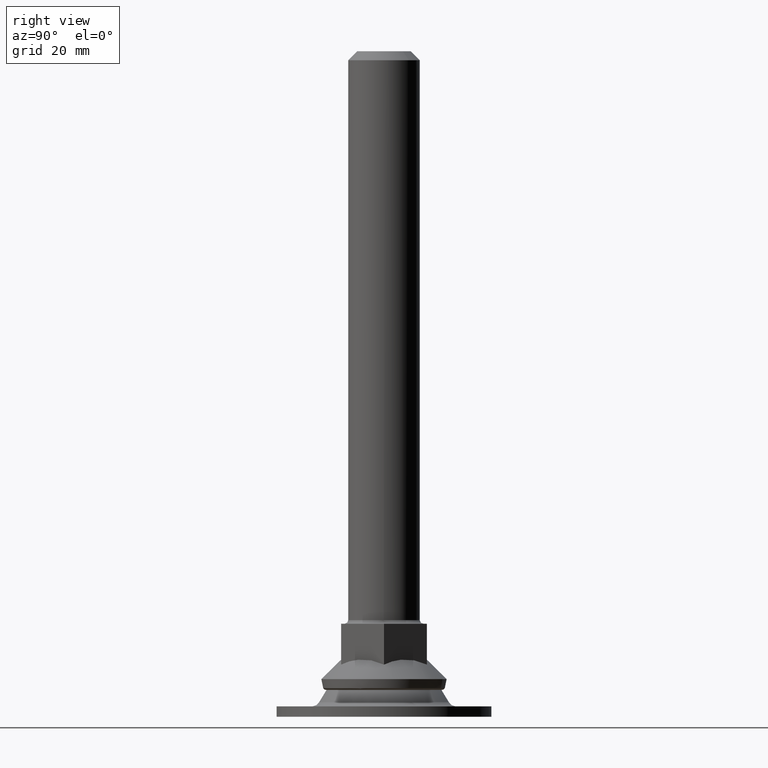
[diagram: clean part render]
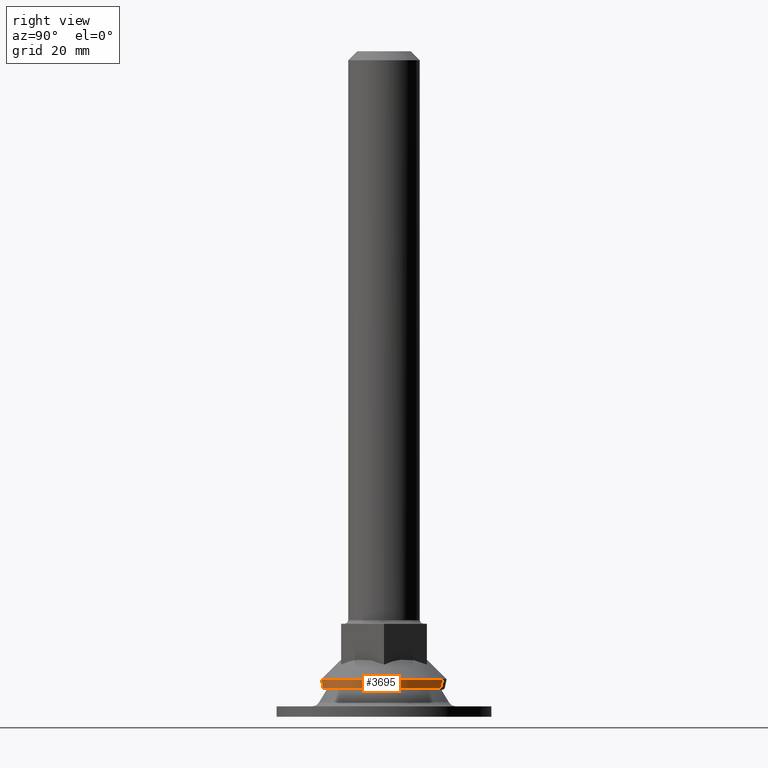
[diagram: same view with one face highlighted and labeled with its STEP entity id]
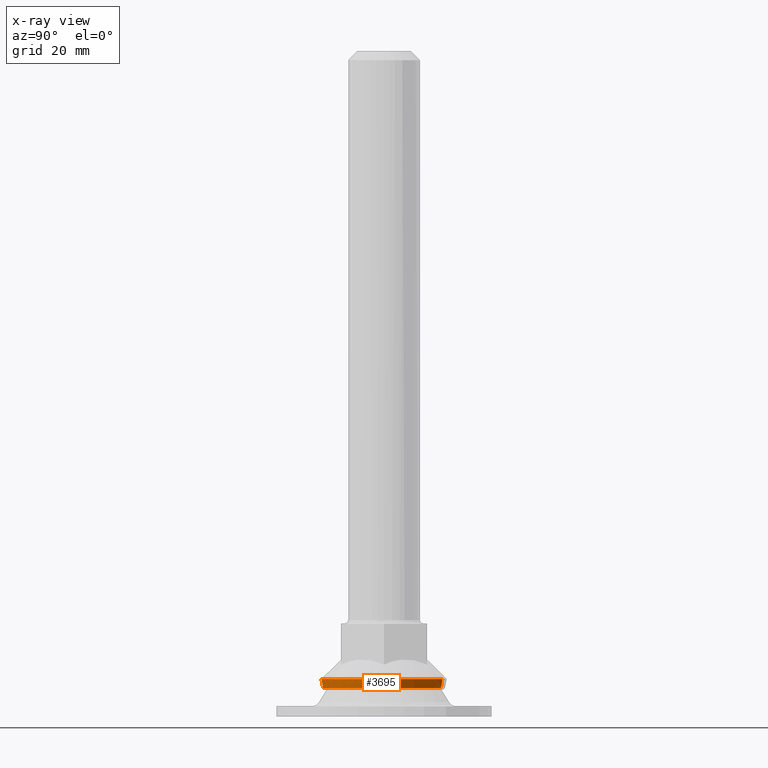
[diagram: x-ray of the same camera — body ghosted, the highlighted face saturated]
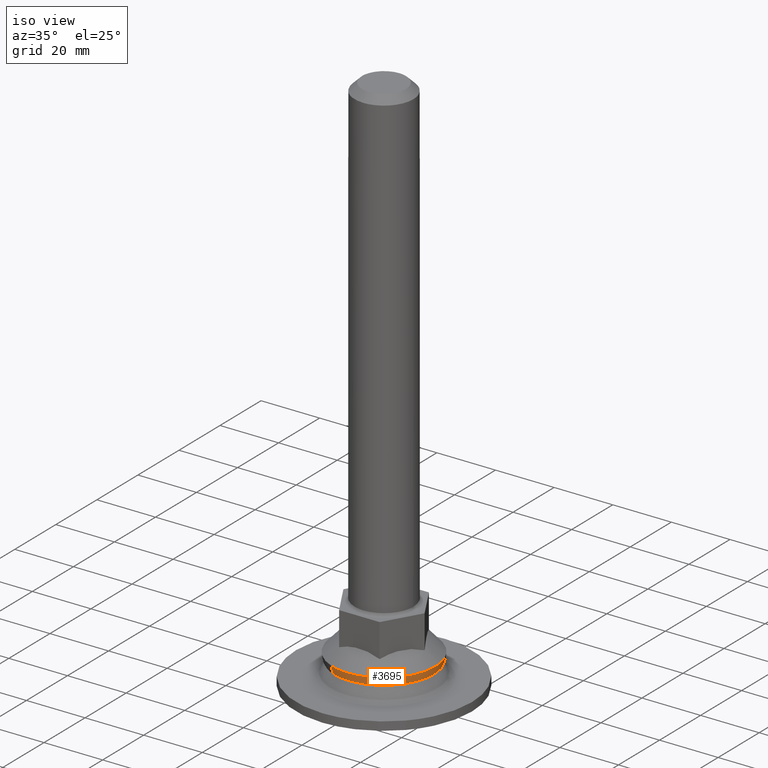
[diagram: same view with one face highlighted and labeled with its STEP entity id]
A machine part, right view. The second image highlights one B-rep face of the part: STEP entity #3695.
The next image is the same camera in x-ray: the body ghosted, the highlighted face saturated — about 0% of this face is hidden behind the body in this view.
A second angle (iso view) of the same face is appended — the face is thin or edge-on in the first view.
In plain terms, the highlighted face is a freeform B-spline surface patch.
Its self-contained STEP definition (entity closure, byte-faithful):
#3468=CARTESIAN_POINT('',(15.726312516149170,-6.456244623863467,7.999999999930881));
#3469=VERTEX_POINT('',#3468);
#3470=CARTESIAN_POINT('',(-6.258117395792366,-15.806200260142059,8.000000000228253));
#3471=VERTEX_POINT('',#3470);
#3472=CARTESIAN_POINT('',(15.726312516149170,-6.456244623863467,7.999999999930881));
#3473=CARTESIAN_POINT('',(15.411945275528870,-7.222024111405900,7.999999999939120));
#3474=CARTESIAN_POINT('',(14.547699398842150,-8.955224634898331,7.999999999959474));
#3475=CARTESIAN_POINT('',(12.825552816272680,-11.302299062939619,7.999999999992882));
#3476=CARTESIAN_POINT('',(10.909712197343181,-13.105471384810199,8.000000000025166));
#3477=CARTESIAN_POINT('',(9.000208056806992,-14.472262690109689,8.000000000054421));
#3478=CARTESIAN_POINT('',(7.178724466458381,-15.466187547113710,8.000000000080449));
#3479=CARTESIAN_POINT('',(4.661525145150057,-16.429952481205980,8.000000000113859));
#3480=CARTESIAN_POINT('',(1.875430037399291,-16.998393214096261,8.000000000147530));
#3481=CARTESIAN_POINT('',(-1.170716699696240,-17.036559030015621,8.000000000180949));
#3482=CARTESIAN_POINT('',(-3.838500639791485,-16.628483182294751,8.000000000207178));
#3483=CARTESIAN_POINT('',(-5.488452843887399,-16.110967106538169,8.000000000221855));
#3484=CARTESIAN_POINT('',(-6.258117395792366,-15.806200260142059,8.000000000228253));
#3485=B_SPLINE_CURVE_WITH_KNOTS('',3,(#3472,#3473,#3474,#3475,#3476,#3477,#3478,#3479,#3480,#3481,#3482,#3483,#3484),.UNSPECIFIED.,.F.,.U.,(4,1,1,1,1,1,1,1,1,1,4),(0.000000071460118,2.483408012162649,5.794703210681519,8.692076653593393,10.347687882398230,12.831157187738160,14.900614009702290,18.418865124234770,21.316244168090829,24.006631849518630,26.490072819547169),.UNSPECIFIED.);
#3486=EDGE_CURVE('',#3469,#3471,#3485,.T.);
#3565=CARTESIAN_POINT('',(17.0,0.0,8.0));
#3566=VERTEX_POINT('',#3565);
#3567=CARTESIAN_POINT('',(17.0,0.0,8.0));
#3568=CARTESIAN_POINT('',(17.000176172652271,-1.172743452213259,7.999999999986646));
#3569=CARTESIAN_POINT('',(16.770589971911711,-3.380147452249711,7.999999999962177));
#3570=CARTESIAN_POINT('',(16.119397758885199,-5.499044814706672,7.999999999940466));
#3571=CARTESIAN_POINT('',(15.726312516149170,-6.456244623863467,7.999999999930881));
#3572=B_SPLINE_CURVE_WITH_KNOTS('',3,(#3567,#3568,#3569,#3570,#3571),.UNSPECIFIED.,.F.,.U.,(4,1,4),(5.739013E-009,3.518209131212337,6.622518204703401),.UNSPECIFIED.);
#3573=EDGE_CURVE('',#3566,#3469,#3572,.T.);
#3579=CARTESIAN_POINT('',(6.258117395792359,15.806200260142070,8.000000000228253));
#3580=VERTEX_POINT('',#3579);
#3596=CARTESIAN_POINT('',(6.258117395792359,15.806200260142070,8.000000000228253));
#3597=CARTESIAN_POINT('',(7.339251267100489,15.378323157670200,8.000000000216769));
#3598=CARTESIAN_POINT('',(9.130278067345383,14.446545691432640,8.000000000195520));
#3599=CARTESIAN_POINT('',(11.312806772669671,12.763805641114470,8.000000000164286));
#3600=CARTESIAN_POINT('',(12.904889765487569,11.135338556870840,8.000000000137465));
#3601=CARTESIAN_POINT('',(14.311464065885289,9.278175130208824,8.000000000109731));
#3602=CARTESIAN_POINT('',(15.601704904183670,6.962515403693350,8.000000000078165));
#3603=CARTESIAN_POINT('',(16.703578281738579,3.805129961779894,8.000000000039572));
#3604=CARTESIAN_POINT('',(17.000322325687989,1.374145170109825,8.000000000013644));
#3605=CARTESIAN_POINT('',(17.0,0.0,8.0));
#3606=B_SPLINE_CURVE_WITH_KNOTS('',3,(#3596,#3597,#3598,#3599,#3600,#3601,#3602,#3603,#3604,#3605),.UNSPECIFIED.,.F.,.U.,(4,1,1,1,1,1,1,4),(0.000000090536375,3.488154733811705,6.025010645012619,8.244779150341183,10.305886822150160,13.001306644113010,16.172392749249671,20.294762095754450),.UNSPECIFIED.);
#3607=EDGE_CURVE('',#3580,#3566,#3606,.T.);
#3612=CARTESIAN_POINT('',(5.986866945175700,16.450019839834329,10.627247101888223));
#3613=CARTESIAN_POINT('',(6.212969554026271,16.360499484128155,10.627247101888218));
#3614=CARTESIAN_POINT('',(22.711651451928972,9.828209212504524,10.627247101888218));
#3615=CARTESIAN_POINT('',(16.269930332216752,-6.441721119712226,10.627247101888223));
#3616=CARTESIAN_POINT('',(9.828209212504524,-22.711651451928972,10.627247101888218));
#3617=CARTESIAN_POINT('',(-6.670472685471764,-16.179361180276210,10.627247101888219));
#3618=CARTESIAN_POINT('',(-6.896575294394225,-16.089840824541575,10.627247101888216));
#3619=CARTESIAN_POINT('',(5.996463749742619,16.476388828317045,9.194675292384705));
#3620=CARTESIAN_POINT('',(6.222928795669060,16.386724973621106,9.194675292384705));
#3621=CARTESIAN_POINT('',(22.748057686170046,9.843963596879345,9.194675292384703));
#3622=CARTESIAN_POINT('',(16.296010641524699,-6.452047044645351,9.194675292384705));
#3623=CARTESIAN_POINT('',(9.843963596879345,-22.748057686170046,9.194675292384703));
#3624=CARTESIAN_POINT('',(-6.681165293695343,-16.205296309399110,9.194675292384703));
#3625=CARTESIAN_POINT('',(-6.907630339693784,-16.115632454674671,9.194675292384705));
#3626=CARTESIAN_POINT('',(5.799099453651707,15.934094066114815,7.883083658873164));
#3627=CARTESIAN_POINT('',(6.018110754130193,15.847381358012161,7.883083658873163));
#3628=CARTESIAN_POINT('',(21.999340678940712,9.519964815743370,7.883083658873161));
#3629=CARTESIAN_POINT('',(15.759652747342047,-6.239687931598676,7.883083658873163));
#3630=CARTESIAN_POINT('',(9.519964815743370,-21.999340678940712,7.883083658873161));
#3631=CARTESIAN_POINT('',(-6.461265109138433,-15.671924136643709,7.883083658873163));
#3632=CARTESIAN_POINT('',(-6.680276409686551,-15.585211428513501,7.883083658873163));
#3640=(BOUNDED_SURFACE()B_SPLINE_SURFACE(2,2,((#3612,#3619,#3626),(#3613,#3620,#3627),(#3614,#3621,#3628),(#3615,#3622,#3629),(#3616,#3623,#3630),(#3617,#3624,#3631),(#3618,#3625,#3632)),.UNSPECIFIED.,.F.,.F.,.U.)B_SPLINE_SURFACE_WITH_KNOTS((3,1,2,1,3),(3,3),(0.0,0.579857710265979,29.572743225245770,58.565628740225563,59.145486450679172),(0.0,2.831743235587940),.UNSPECIFIED.)GEOMETRIC_REPRESENTATION_ITEM()RATIONAL_B_SPLINE_SURFACE(((0.959198979079893,0.936976675543790,0.959744767160994),(0.953645188257731,0.931551552524782,0.954187816209492),(0.670401856311320,0.654870278539617,0.670783317666787),(0.948091397435568,0.926126429505773,0.948630865257990),(0.670401856311320,0.654870278539617,0.670783317666787),(0.953645188259528,0.931551552526537,0.954187816211290),(0.959198979083488,0.936976675547301,0.959744767164590)))REPRESENTATION_ITEM('')SURFACE());
#3641=ORIENTED_EDGE('',*,*,#3607,.F.);
#3642=CARTESIAN_POINT('',(6.442179672009505,16.271088503033521,10.499999999988480));
#3643=VERTEX_POINT('',#3642);
#3644=CARTESIAN_POINT('',(6.442179672009505,16.271088503033521,10.499999999988480));
#3645=CARTESIAN_POINT('',(6.442402664200919,16.271651716931309,9.644514052918595));
#3646=CARTESIAN_POINT('',(6.379402435256547,16.112531302158541,8.789473588993602));
#3647=CARTESIAN_POINT('',(6.258117395792359,15.806200260142070,8.000000000228253));
#3648=B_SPLINE_CURVE_WITH_KNOTS('',3,(#3644,#3645,#3646,#3647),.UNSPECIFIED.,.F.,.U.,(4,4),(0.000000014766694,2.566158551188515),.UNSPECIFIED.);
#3649=EDGE_CURVE('',#3643,#3580,#3648,.T.);
#3650=ORIENTED_EDGE('',*,*,#3649,.F.);
#3651=CARTESIAN_POINT('',(17.500000000000000,0.0,10.500000000000000));
#3652=VERTEX_POINT('',#3651);
#3653=CARTESIAN_POINT('',(6.442179672009505,16.271088503033521,10.499999999988480));
#3654=CARTESIAN_POINT('',(7.757566128484298,15.750708381420340,10.499999999989170));
#3655=CARTESIAN_POINT('',(9.731051910710002,14.676329716082670,10.499999999990330));
#3656=CARTESIAN_POINT('',(12.298104800389909,12.560114708280089,10.499999999992230));
#3657=CARTESIAN_POINT('',(14.383576656482139,10.173697140784810,10.499999999993930));
#3658=CARTESIAN_POINT('',(15.953895928574349,7.415750688522921,10.499999999995930));
#3659=CARTESIAN_POINT('',(17.173958403311879,3.971301255105628,10.499999999997980));
#3660=CARTESIAN_POINT('',(17.500504518683648,1.577819955629081,10.499999999999149));
#3661=CARTESIAN_POINT('',(17.500000000000000,0.0,10.500000000000000));
#3662=B_SPLINE_CURVE_WITH_KNOTS('',3,(#3653,#3654,#3655,#3656,#3657,#3658,#3659,#3660,#3661),.UNSPECIFIED.,.F.,.U.,(4,1,1,1,1,1,4),(0.000000086629896,4.243616405065399,6.691876775537116,9.956210998992564,13.710147552430200,16.158403780252950,20.891666863325302),.UNSPECIFIED.);
#3663=EDGE_CURVE('',#3643,#3652,#3662,.T.);
#3664=ORIENTED_EDGE('',*,*,#3663,.T.);
#3665=CARTESIAN_POINT('',(-6.442179672009507,-16.271088503033521,10.499999999988480));
#3666=VERTEX_POINT('',#3665);
#3667=CARTESIAN_POINT('',(17.500000000000000,0.0,10.500000000000000));
#3668=CARTESIAN_POINT('',(17.500094653143609,-1.020812217045716,10.499999999999810));
#3669=CARTESIAN_POINT('',(17.348087882014070,-2.751713039325113,10.499999999999270));
#3670=CARTESIAN_POINT('',(16.703859364383899,-5.432233924505061,10.499999999998570));
#3671=CARTESIAN_POINT('',(15.535124665052930,-8.323792483284477,10.499999999997479));
#3672=CARTESIAN_POINT('',(13.745616923930401,-10.998102868598551,10.499999999996239));
#3673=CARTESIAN_POINT('',(11.346060773356291,-13.442831316826020,10.499999999995110));
#3674=CARTESIAN_POINT('',(8.875326840143268,-15.205681626257670,10.499999999993770));
#3675=CARTESIAN_POINT('',(5.959763167166365,-16.541033129688671,10.499999999992591));
#3676=CARTESIAN_POINT('',(3.206600957488396,-17.279682903144749,10.499999999991360));
#3677=CARTESIAN_POINT('',(0.638416124254545,-17.543374711169889,10.499999999990550));
#3678=CARTESIAN_POINT('',(-2.605677279839930,-17.431249791171719,10.499999999989489));
#3679=CARTESIAN_POINT('',(-4.915494757814019,-16.876272315346871,10.499999999988690));
#3680=CARTESIAN_POINT('',(-6.442179672009507,-16.271088503033521,10.499999999988480));
#3681=B_SPLINE_CURVE_WITH_KNOTS('',3,(#3667,#3668,#3669,#3670,#3671,#3672,#3673,#3674,#3675,#3676,#3677,#3678,#3679,#3680),.UNSPECIFIED.,.F.,.U.,(4,1,1,1,1,1,1,1,1,1,1,4),(0.000000213082991,3.062425925654310,5.192825730115043,8.255290699709168,12.382977219230250,14.779637154846700,18.507753188290380,21.437110458232961,24.366409174082190,27.029435808678102,29.159855983438160,34.086362508629627),.UNSPECIFIED.);
#3682=EDGE_CURVE('',#3652,#3666,#3681,.T.);
#3683=ORIENTED_EDGE('',*,*,#3682,.T.);
#3684=CARTESIAN_POINT('',(-6.442179672009507,-16.271088503033521,10.499999999988480));
#3685=CARTESIAN_POINT('',(-6.442337907602590,-16.271488160433918,9.644547144103907));
#3686=CARTESIAN_POINT('',(-6.379464021453535,-16.112686851136200,8.789438392074995));
#3687=CARTESIAN_POINT('',(-6.258117395792366,-15.806200260142059,8.000000000228253));
#3688=B_SPLINE_CURVE_WITH_KNOTS('',3,(#3684,#3685,#3686,#3687),.UNSPECIFIED.,.F.,.U.,(4,4),(0.000000014767192,2.566158551188513),.UNSPECIFIED.);
#3689=EDGE_CURVE('',#3666,#3471,#3688,.T.);
#3690=ORIENTED_EDGE('',*,*,#3689,.T.);
#3691=ORIENTED_EDGE('',*,*,#3486,.F.);
#3692=ORIENTED_EDGE('',*,*,#3573,.F.);
#3693=EDGE_LOOP('',(#3641,#3650,#3664,#3683,#3690,#3691,#3692));
#3694=FACE_OUTER_BOUND('',#3693,.T.);
#3695=ADVANCED_FACE('',(#3694),#3640,.T.);